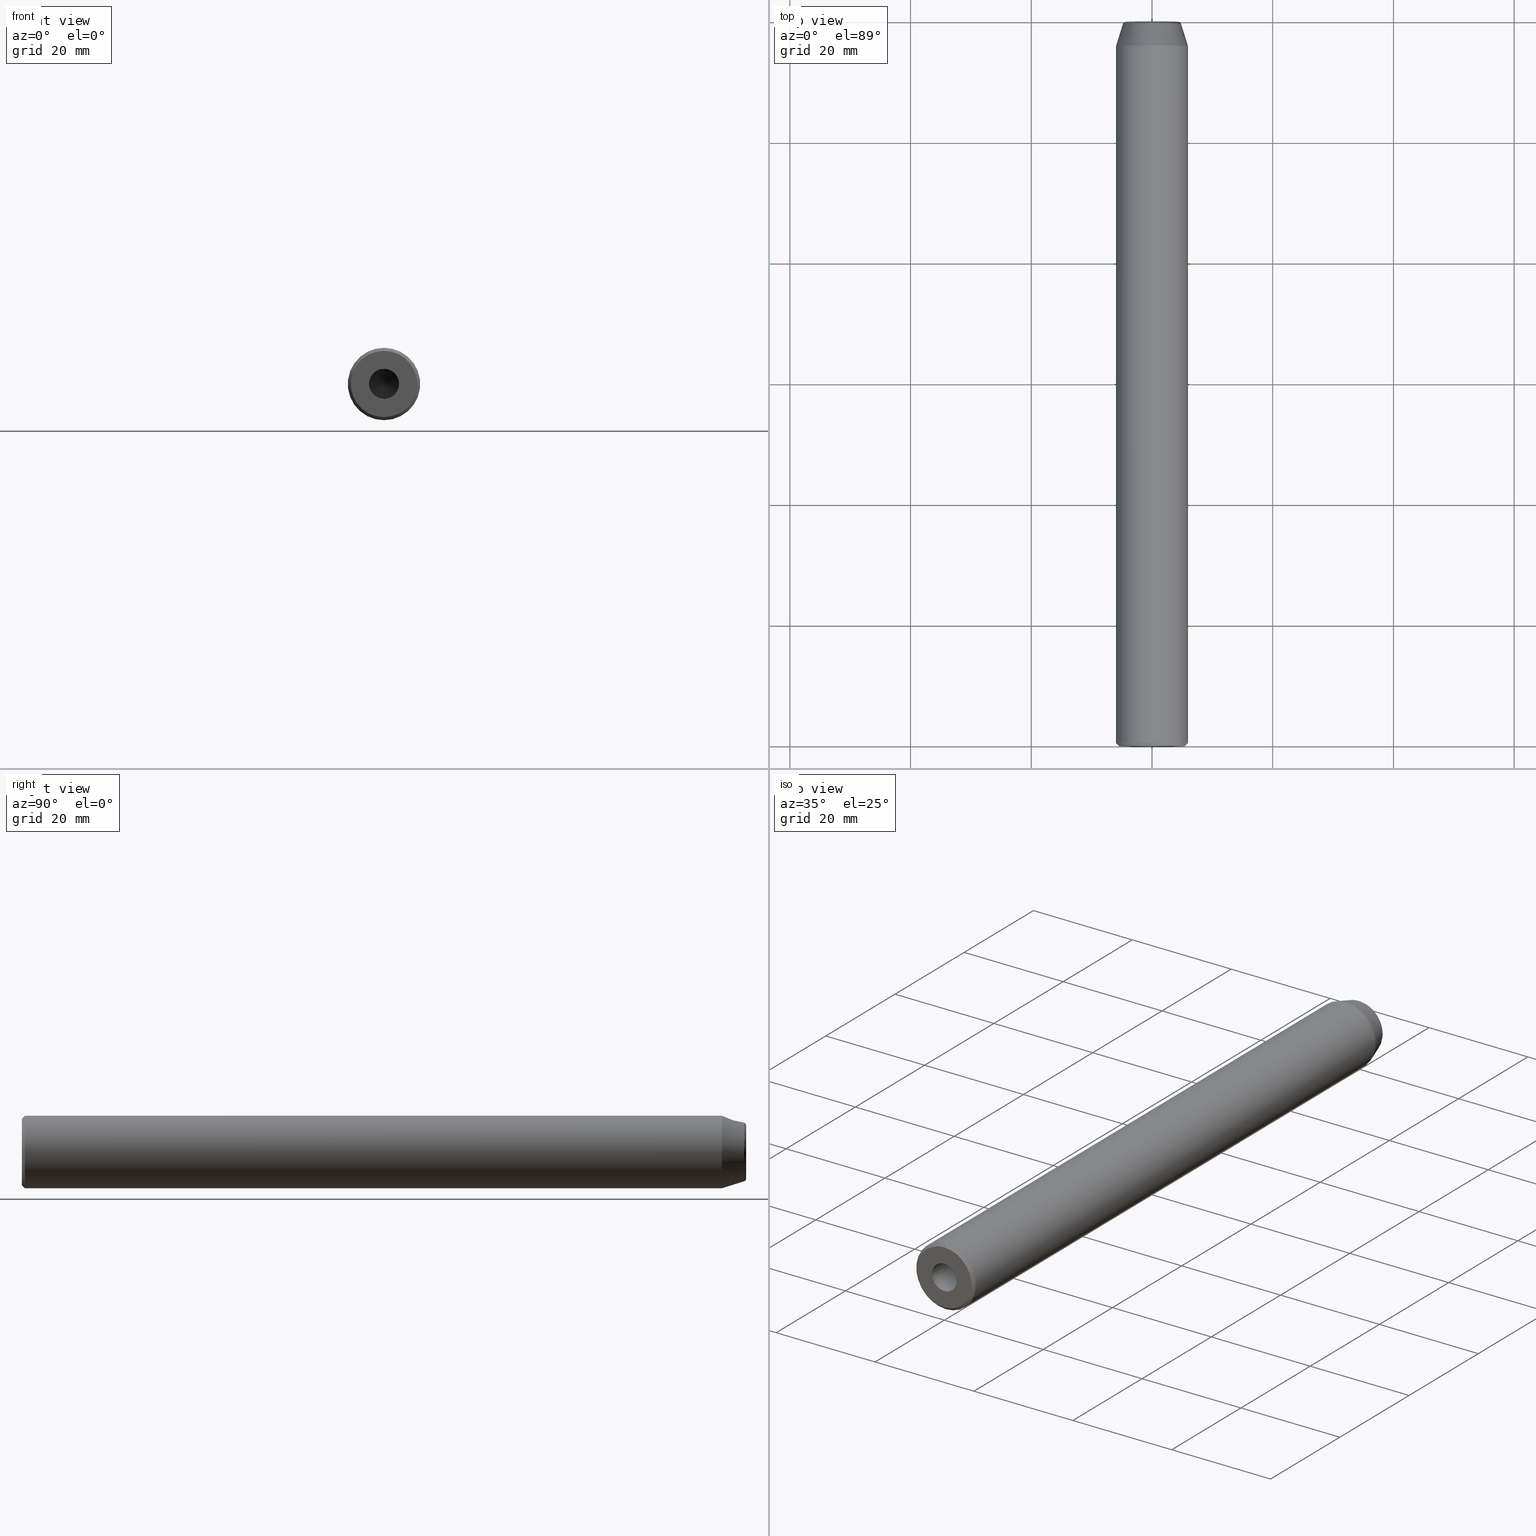
[diagram: canonical four-view strip — front | top / right | iso, engineering-drawing reading convention]
A machine part, canonical four-view strip (front | top / right | iso — engineering-drawing reading convention). The complete STEP part file that produces these views, byte-faithful:
ISO-10303-21;
HEADER;
FILE_DESCRIPTION (( 'STEP AP203' ),
    '1' );
FILE_NAME ('524212.STEP',
    '2024-06-12T02:05:01',
    ( 'Windows User' ),
    ( 'P R C' ),
    'SwSTEP 2.0',
    'SolidWorks 2020',
    '' );
FILE_SCHEMA (( 'CONFIG_CONTROL_DESIGN' ));
ENDSEC;

DATA;
#1 = ORIENTED_EDGE ( 'NONE', *, *, #247, .F. ) ;
#2 = SECURITY_CLASSIFICATION_LEVEL ( 'unclassified' ) ;
#3 = ORIENTED_EDGE ( 'NONE', *, *, #193, .F. ) ;
#4 = CARTESIAN_POINT ( 'NONE',  ( 9.583974353807441560, 119.8656410339957432, 4.791987176903720780 ) ) ;
#5 = PLANE ( 'NONE',  #108 ) ;
#6 = LOCAL_TIME ( 10, 5, 1.000000000000000000, #21 ) ;
#7 = MECHANICAL_CONTEXT ( 'NONE', #179, 'mechanical' ) ;
#8 = AXIS2_PLACEMENT_3D ( 'NONE', #116, #299, #20 ) ;
#9 = DIRECTION ( 'NONE',  ( 0.000000000000000000, 0.000000000000000000, 1.000000000000000000 ) ) ;
#10 = CIRCLE ( 'NONE', #121, 2.499999999999998224 ) ;
#11 = CARTESIAN_POINT ( 'NONE',  ( 0.000000000000000000, 0.5000000000000004441, -6.000000000000000888 ) ) ;
#12 = DIRECTION ( 'NONE',  ( 0.000000000000000000, 0.000000000000000000, -1.000000000000000000 ) ) ;
#13 = CARTESIAN_POINT ( 'NONE',  ( 0.000000000000000000, 120.0000000000000000, 1.649999999999998579 ) ) ;
#14 = CARTESIAN_POINT ( 'NONE',  ( 0.000000000000000000, 11.00000000000000000, 0.000000000000000000 ) ) ;
#15 = CARTESIAN_POINT ( 'NONE',  ( 0.000000000000000000, 109.8999999999999915, 1.649999999999998579 ) ) ;
#16 = ADVANCED_FACE ( 'NONE', ( #225, #266 ), #229, .T. ) ;
#17 = CC_DESIGN_APPROVAL ( #262, ( #45 ) ) ;
#18 = CARTESIAN_POINT ( 'NONE',  ( 5.483787781522369726E-16, 120.0000000000000000, -4.382404543304999400 ) ) ;
#19 = APPROVAL_ROLE ( '' ) ;
#20 = DIRECTION ( 'NONE',  ( 0.000000000000000000, 0.000000000000000000, 1.000000000000000000 ) ) ;
#21 = COORDINATED_UNIVERSAL_TIME_OFFSET ( 8, 0, .AHEAD. ) ;
#22 = DIRECTION ( 'NONE',  ( 0.000000000000000000, 0.000000000000000000, -1.000000000000000000 ) ) ;
#23 = APPROVAL ( #237, 'δָ��' ) ;
#24 = APPROVAL_DATE_TIME ( #126, #262 ) ;
#25 = LOCAL_TIME ( 10, 5, 1.000000000000000000, #233 ) ;
#26 = PERSON ( 'δָ��', 'δָ��', 'δָ��', ('δָ��'), ('δָ��'), ('δָ��') ) ;
#27 = CIRCLE ( 'NONE', #67, 4.859644532331230948 ) ;
#28 = CALENDAR_DATE ( 2024, 12, 6 ) ;
#29 = PERSON_AND_ORGANIZATION ( #26, #174 ) ;
#30 = CC_DESIGN_PERSON_AND_ORGANIZATION_ASSIGNMENT ( #29, #48, ( #235 ) ) ;
#31 = CARTESIAN_POINT ( 'NONE',  ( 9.218466664468715877, 119.9999999999999858, 4.609233332234357938 ) ) ;
#32 = CARTESIAN_POINT ( 'NONE',  ( 0.000000000000000000, 119.6491374965103205, -4.859644532331230948 ) ) ;
#33 = CARTESIAN_POINT ( 'NONE',  ( -8.764809086609998801, 119.9999999999999858, -4.382404543304999400 ) ) ;
#34 =( NAMED_UNIT ( * ) PLANE_ANGLE_UNIT ( ) SI_UNIT ( $, .RADIAN. ) );
#35 = CARTESIAN_POINT ( 'NONE',  ( 0.000000000000000000, 109.8999999998977728, 0.000000000000000000 ) ) ;
#36 = CARTESIAN_POINT ( 'NONE',  ( 0.000000000000000000, 11.00000000000000000, -2.499999999999998224 ) ) ;
#37 = FACE_OUTER_BOUND ( 'NONE', #188, .T. ) ;
#38 = CONICAL_SURFACE ( 'NONE', #209, 1.649999999870033207, 1.029744258665856727 ) ;
#39 = APPROVAL_STATUS ( 'not_yet_approved' ) ;
#40 = FACE_BOUND ( 'NONE', #75, .T. ) ;
#41 = EDGE_CURVE ( 'NONE', #59, #59, #258, .T. ) ;
#42 = VERTEX_POINT ( 'NONE', #13 ) ;
#43 = DIRECTION ( 'NONE',  ( 0.000000000000000000, -1.000000000000000000, 0.000000000000000000 ) ) ;
#44 = DATE_AND_TIME ( #239, #151 ) ;
#45 = SECURITY_CLASSIFICATION ( '', '', #2 ) ;
#46 = CONICAL_SURFACE ( 'NONE', #220, 5.999999999971805664, 0.3028848683740845149 ) ;
#47 = DIRECTION ( 'NONE',  ( -0.000000000000000000, -1.000000000000000000, -0.000000000000000000 ) ) ;
#48 = PERSON_AND_ORGANIZATION_ROLE ( 'creator' ) ;
#49 = DIRECTION ( 'NONE',  ( 0.000000000000000000, 0.000000000000000000, 1.000000000000000000 ) ) ;
#50 = DATE_AND_TIME ( #153, #66 ) ;
#51 = ADVANCED_FACE ( 'NONE', ( #202, #161 ), #5, .T. ) ;
#52 = PERSON_AND_ORGANIZATION_ROLE ( 'classification_officer' ) ;
#53 = CARTESIAN_POINT ( 'NONE',  ( 0.000000000000000000, 120.0000000000000000, 0.000000000000000000 ) ) ;
#54 = CARTESIAN_POINT ( 'NONE',  ( 8.764809086609998801, 119.9999999999999858, 4.382404543304999400 ) ) ;
#55 = CARTESIAN_POINT ( 'NONE',  ( 9.218466664468715877, 119.9999999999999858, -4.609233332234357938 ) ) ;
#56 = EDGE_LOOP ( 'NONE', ( #73 ) ) ;
#57 = DIRECTION ( 'NONE',  ( 0.000000000000000000, 1.000000000000000000, 0.000000000000000000 ) ) ;
#58 = CARTESIAN_POINT ( 'NONE',  ( -9.218466664468715877, 119.9999999999999858, 4.609233332234357938 ) ) ;
#59 = VERTEX_POINT ( 'NONE', #89 ) ;
#60 = CARTESIAN_POINT ( 'NONE',  ( -8.764809086609997024, 120.0000000000000142, -4.382404543305000288 ) ) ;
#61 = PRODUCT_DEFINITION ( 'δ֪', '', #235, #85 ) ;
#62 = DIRECTION ( 'NONE',  ( 0.000000000000000000, 1.000000000000000000, 0.000000000000000000 ) ) ;
#63 = DATE_AND_TIME ( #298, #25 ) ;
#64 = CARTESIAN_POINT ( 'NONE',  ( 5.483787781522369726E-16, 120.0000000000000000, -4.382404543304999400 ) ) ;
#65 = APPROVAL_STATUS ( 'not_yet_approved' ) ;
#66 = LOCAL_TIME ( 10, 5, 1.000000000000000000, #118 ) ;
#67 = AXIS2_PLACEMENT_3D ( 'NONE', #256, #293, #12 ) ;
#68 = FACE_OUTER_BOUND ( 'NONE', #180, .T. ) ;
#69 = CIRCLE ( 'NONE', #138, 1.649999999999998579 ) ;
#70 = COORDINATED_UNIVERSAL_TIME_OFFSET ( 8, 0, .AHEAD. ) ;
#71 = ADVANCED_FACE ( 'NONE', ( #249, #292 ), #117, .T. ) ;
#72 = APPROVAL ( #39, 'δָ��' ) ;
#73 = ORIENTED_EDGE ( 'NONE', *, *, #268, .F. ) ;
#74 = CIRCLE ( 'NONE', #242, 5.500000000040472514 ) ;
#75 = EDGE_LOOP ( 'NONE', ( #1 ) ) ;
#76 = ORIENTED_EDGE ( 'NONE', *, *, #120, .T. ) ;
#77 = CARTESIAN_POINT ( 'NONE',  ( 0.000000000000000000, 119.8656410339957574, -4.791987176903720780 ) ) ;
#78 = EDGE_CURVE ( 'NONE', #125, #205, #263, .T. ) ;
#79 = CYLINDRICAL_SURFACE ( 'NONE', #288, 6.000000000000000888 ) ;
#80 = CARTESIAN_POINT ( 'NONE',  ( -8.764809086609998801, 119.9999999999999858, 4.382404543304999400 ) ) ;
#81 = PERSON_AND_ORGANIZATION ( #26, #174 ) ;
#82 = DIRECTION ( 'NONE',  ( -0.000000000000000000, -1.000000000000000000, -0.000000000000000000 ) ) ;
#83 = CC_DESIGN_PERSON_AND_ORGANIZATION_ASSIGNMENT ( #296, #87, ( #61 ) ) ;
#84 = CARTESIAN_POINT ( 'NONE',  ( 0.000000000000000000, 0.000000000000000000, 5.500000000040472514 ) ) ;
#85 = DESIGN_CONTEXT ( 'detailed design', #146, 'design' ) ;
#86 = CARTESIAN_POINT ( 'NONE',  ( 0.000000000000000000, 120.0000000000000000, 4.382404543304999400 ) ) ;
#87 = PERSON_AND_ORGANIZATION_ROLE ( 'creator' ) ;
#88 = CARTESIAN_POINT ( 'NONE',  ( 8.764809086609997024, 120.0000000000000142, 4.382404543304999400 ) ) ;
#89 = CARTESIAN_POINT ( 'NONE',  ( 0.000000000000000000, 115.9999999999999858, -6.000000000000000888 ) ) ;
#90 = CYLINDRICAL_SURFACE ( 'NONE', #96, 2.499999999999998224 ) ;
#91 = DIRECTION ( 'NONE',  ( 0.000000000000000000, 0.000000000000000000, -1.000000000000000000 ) ) ;
#92 = AXIS2_PLACEMENT_3D ( 'NONE', #182, #221, #223 ) ;
#93 = AXIS2_PLACEMENT_3D ( 'NONE', #276, #62, #280 ) ;
#94 = DATE_AND_TIME ( #28, #6 ) ;
#95 = EDGE_LOOP ( 'NONE', ( #287, #241 ) ) ;
#96 = AXIS2_PLACEMENT_3D ( 'NONE', #278, #295, #297 ) ;
#97 = ORIENTED_EDGE ( 'NONE', *, *, #193, .T. ) ;
#98 = EDGE_LOOP ( 'NONE', ( #97 ) ) ;
#99 = EDGE_LOOP ( 'NONE', ( #130 ) ) ;
#100 = DATE_TIME_ROLE ( 'classification_date' ) ;
#101 = CARTESIAN_POINT ( 'NONE',  ( 0.000000000000000000, 120.0000000000000000, -4.382404543304999400 ) ) ;
#102 = EDGE_LOOP ( 'NONE', ( #3 ) ) ;
#103 = ADVANCED_FACE ( 'NONE', ( #37, #196 ), #90, .F. ) ;
#104 = DIRECTION ( 'NONE',  ( 0.000000000000000000, 1.000000000000000000, 0.000000000000000000 ) ) ;
#105 =( NAMED_UNIT ( * ) SI_UNIT ( $, .STERADIAN. ) SOLID_ANGLE_UNIT ( ) );
#106 = ORIENTED_EDGE ( 'NONE', *, *, #131, .F. ) ;
#107 = CC_DESIGN_APPROVAL ( #23, ( #235 ) ) ;
#108 = AXIS2_PLACEMENT_3D ( 'NONE', #53, #104, #154 ) ;
#109 = AXIS2_PLACEMENT_3D ( 'NONE', #248, #160, #211 ) ;
#110 = CARTESIAN_POINT ( 'NONE',  ( 0.000000000000000000, 1.040949779275260987E-16, 0.000000000000000000 ) ) ;
#111 = DIRECTION ( 'NONE',  ( 0.000000000000000000, 0.000000000000000000, -1.000000000000000000 ) ) ;
#112 = PLANE ( 'NONE',  #208 ) ;
#113 = APPROVAL_DATE_TIME ( #63, #72 ) ;
#114 = CARTESIAN_POINT ( 'NONE',  ( 9.719289064679410117, 119.6491374965129637, -4.859644532339705059 ) ) ;
#115 = CARTESIAN_POINT ( 'NONE',  ( 0.000000000000000000, 25.00000000000000000, 0.000000000000000000 ) ) ;
#116 = CARTESIAN_POINT ( 'NONE',  ( 0.000000000000000000, 120.0000000000000000, 0.000000000000000000 ) ) ;
#117 =( BOUNDED_SURFACE ( )  B_SPLINE_SURFACE ( 3, 3, ( 
 ( #206, #54, #267, #101, #33, #80, #204 ),
 ( #156, #31, #55, #157, #246, #58, #127 ),
 ( #132, #4, #291, #77, #252, #170, #195 ),
 ( #140, #250, #114, #190, #212, #257, #214 ) ),
 .UNSPECIFIED., .F., .T., .T. ) 
 B_SPLINE_SURFACE_WITH_KNOTS ( ( 4, 4 ),
 ( 4, 3, 4 ),
 ( 0.000000000000000000, 1.000000000000000000 ),
 ( 0.000000000000000000, 0.5000000000000000000, 1.000000000000000000 ),
 .UNSPECIFIED. ) 
 GEOMETRIC_REPRESENTATION_ITEM ( )  RATIONAL_B_SPLINE_SURFACE ( (
 ( 1.000000000000000000, 0.3333333333333333148, 0.3333333333333333148, 1.000000000000000000, 0.3333333333333333148, 0.3333333333333333148, 1.000000000000000000),
 ( 0.8704604635415936764, 0.2901534878471978551, 0.2901534878471978551, 0.8704604635415936764, 0.2901534878471978551, 0.2901534878471978551, 0.8704604635415936764),
 ( 0.8704604635415936764, 0.2901534878471978551, 0.2901534878471978551, 0.8704604635415936764, 0.2901534878471978551, 0.2901534878471978551, 0.8704604635415936764),
 ( 1.000000000000000000, 0.3333333333333333148, 0.3333333333333333148, 1.000000000000000000, 0.3333333333333333148, 0.3333333333333333148, 1.000000000000000000) ) ) 
 REPRESENTATION_ITEM ( '' )  SURFACE ( )  );
#118 = COORDINATED_UNIVERSAL_TIME_OFFSET ( 8, 0, .AHEAD. ) ;
#119 = DIRECTION ( 'NONE',  ( 0.000000000000000000, 0.000000000000000000, -1.000000000000000000 ) ) ;
#120 = EDGE_CURVE ( 'NONE', #273, #273, #198, .T. ) ;
#121 = AXIS2_PLACEMENT_3D ( 'NONE', #110, #82, #22 ) ;
#122 = CC_DESIGN_PERSON_AND_ORGANIZATION_ASSIGNMENT ( #149, #282, ( #235 ) ) ;
#123 = EDGE_LOOP ( 'NONE', ( #270 ) ) ;
#124 = CLOSED_SHELL ( 'NONE', ( #289, #103, #201, #16, #279, #240, #226, #51, #71, #178 ) ) ;
#125 = VERTEX_POINT ( 'NONE', #167 ) ;
#126 = DATE_AND_TIME ( #222, #142 ) ;
#127 = CARTESIAN_POINT ( 'NONE',  ( 0.000000000000000000, 120.0000000000000000, 4.609233332234357938 ) ) ;
#128 = PERSON_AND_ORGANIZATION ( #26, #174 ) ;
#129 = DIRECTION ( 'NONE',  ( 0.000000000000000000, 0.000000000000000000, 1.000000000000000000 ) ) ;
#130 = ORIENTED_EDGE ( 'NONE', *, *, #41, .F. ) ;
#131 = EDGE_CURVE ( 'NONE', #205, #125, #164, .T. ) ;
#132 = CARTESIAN_POINT ( 'NONE',  ( 0.000000000000000000, 119.8656410339957574, 4.791987176903720780 ) ) ;
#133 = VERTEX_POINT ( 'NONE', #84 ) ;
#134 = DIRECTION ( 'NONE',  ( 0.000000000000000000, 1.000000000000000000, 0.000000000000000000 ) ) ;
#135 = DIRECTION ( 'NONE',  ( -0.000000000000000000, 1.000000000000000000, 0.000000000000000000 ) ) ;
#136 = VERTEX_POINT ( 'NONE', #15 ) ;
#137 = UNCERTAINTY_MEASURE_WITH_UNIT (LENGTH_MEASURE( 1.000000000000000082E-05 ), #194, 'distance_accuracy_value', 'NONE');
#138 = AXIS2_PLACEMENT_3D ( 'NONE', #173, #259, #49 ) ;
#139 = CARTESIAN_POINT ( 'NONE',  ( 0.000000000000000000, 120.0000000000000000, 4.382404543304999400 ) ) ;
#140 = CARTESIAN_POINT ( 'NONE',  ( 0.000000000000000000, 119.6491374965129637, 4.859644532339705059 ) ) ;
#141 = FACE_OUTER_BOUND ( 'NONE', #264, .T. ) ;
#142 = LOCAL_TIME ( 10, 5, 1.000000000000000000, #70 ) ;
#143 = AXIS2_PLACEMENT_3D ( 'NONE', #14, #47, #91 ) ;
#144 = EDGE_CURVE ( 'NONE', #162, #162, #27, .T. ) ;
#145 = CARTESIAN_POINT ( 'NONE',  ( 0.000000000000000000, 0.000000000000000000, 0.000000000000000000 ) ) ;
#146 = APPLICATION_CONTEXT ( 'configuration controlled 3d designs of mechanical parts and assemblies' ) ;
#147 = PRODUCT ( '524212', '524212', '', ( #7 ) ) ;
#148 = FACE_OUTER_BOUND ( 'NONE', #98, .T. ) ;
#149 = PERSON_AND_ORGANIZATION ( #26, #174 ) ;
#150 = ORIENTED_EDGE ( 'NONE', *, *, #300, .T. ) ;
#151 = LOCAL_TIME ( 10, 5, 1.000000000000000000, #260 ) ;
#152 = AXIS2_PLACEMENT_3D ( 'NONE', #216, #169, #163 ) ;
#153 = CALENDAR_DATE ( 2024, 12, 6 ) ;
#154 = DIRECTION ( 'NONE',  ( 0.000000000000000000, -0.000000000000000000, 1.000000000000000000 ) ) ;
#155 = ADVANCED_BREP_SHAPE_REPRESENTATION ( '524212', ( #306, #230 ), #199 ) ;
#156 = CARTESIAN_POINT ( 'NONE',  ( 0.000000000000000000, 120.0000000000000000, 4.609233332234357938 ) ) ;
#157 = CARTESIAN_POINT ( 'NONE',  ( 0.000000000000000000, 120.0000000000000000, -4.609233332234357938 ) ) ;
#158 = FACE_OUTER_BOUND ( 'NONE', #309, .T. ) ;
#159 = EDGE_LOOP ( 'NONE', ( #150 ) ) ;
#160 = DIRECTION ( 'NONE',  ( 0.000000000000000000, -1.000000000000000000, 0.000000000000000000 ) ) ;
#161 = FACE_OUTER_BOUND ( 'NONE', #265, .T. ) ;
#162 = VERTEX_POINT ( 'NONE', #32 ) ;
#163 = DIRECTION ( 'NONE',  ( 0.000000000000000000, 0.000000000000000000, -1.000000000000000000 ) ) ;
#164 =( BOUNDED_CURVE ( )  B_SPLINE_CURVE ( 3, ( #139, #231, #60, #64 ),
 .UNSPECIFIED., .F., .T. ) 
 B_SPLINE_CURVE_WITH_KNOTS ( ( 4, 4 ),
 ( 0.000000000000000000, 1.000000000000000000 ),
 .UNSPECIFIED. ) 
 CURVE ( )  GEOMETRIC_REPRESENTATION_ITEM ( )  RATIONAL_B_SPLINE_CURVE ( ( 1.000000000000000000, 0.3333333333333333703, 0.3333333333333333703, 1.000000000000000000 ) ) 
 REPRESENTATION_ITEM ( '' )  );
#165 = APPLICATION_PROTOCOL_DEFINITION ( 'international standard', 'config_control_design', 1994, #146 ) ;
#166 = APPROVAL_PERSON_ORGANIZATION ( #253, #72, #232 ) ;
#167 = CARTESIAN_POINT ( 'NONE',  ( 5.483787781522369726E-16, 120.0000000000000000, -4.382404543304999400 ) ) ;
#168 = DIRECTION ( 'NONE',  ( 0.000000000000000000, 0.000000000000000000, 1.000000000000000000 ) ) ;
#169 = DIRECTION ( 'NONE',  ( 0.000000000000000000, 1.000000000000000000, 0.000000000000000000 ) ) ;
#170 = CARTESIAN_POINT ( 'NONE',  ( -9.583974353807441560, 119.8656410339957432, 4.791987176903720780 ) ) ;
#171 = CIRCLE ( 'NONE', #152, 6.000000000000000888 ) ;
#172 = SHAPE_DEFINITION_REPRESENTATION ( #301, #155 ) ;
#173 = CARTESIAN_POINT ( 'NONE',  ( 0.000000000000000000, 109.8999999999999915, 0.000000000000000000 ) ) ;
#174 = ORGANIZATION ( 'δָ��', 'δָ��', '' ) ;
#175 = APPROVAL_ROLE ( '' ) ;
#176 = CC_DESIGN_PERSON_AND_ORGANIZATION_ASSIGNMENT ( #81, #189, ( #147 ) ) ;
#177 = ORIENTED_EDGE ( 'NONE', *, *, #218, .T. ) ;
#178 = ADVANCED_FACE ( 'NONE', ( #254, #277 ), #46, .T. ) ;
#179 = APPLICATION_CONTEXT ( 'configuration controlled 3d designs of mechanical parts and assemblies' ) ;
#180 = EDGE_LOOP ( 'NONE', ( #227 ) ) ;
#181 = CC_DESIGN_DATE_AND_TIME_ASSIGNMENT ( #44, #303, ( #61 ) ) ;
#182 = CARTESIAN_POINT ( 'NONE',  ( 0.000000000000000000, 115.9999999999999858, 0.000000000000000000 ) ) ;
#183 = EDGE_LOOP ( 'NONE', ( #177 ) ) ;
#184 = ORIENTED_EDGE ( 'NONE', *, *, #218, .F. ) ;
#185 = CC_DESIGN_APPROVAL ( #72, ( #61 ) ) ;
#186 = AXIS2_PLACEMENT_3D ( 'NONE', #244, #134, #129 ) ;
#187 = DIRECTION ( 'NONE',  ( -0.000000000000000000, -1.000000000000000000, -0.000000000000000000 ) ) ;
#188 = EDGE_LOOP ( 'NONE', ( #290 ) ) ;
#189 = PERSON_AND_ORGANIZATION_ROLE ( 'design_owner' ) ;
#190 = CARTESIAN_POINT ( 'NONE',  ( 0.000000000000000000, 119.6491374965129637, -4.859644532339705059 ) ) ;
#191 = FACE_OUTER_BOUND ( 'NONE', #272, .T. ) ;
#192 = CARTESIAN_POINT ( 'NONE',  ( 0.000000000000000000, 120.0000000000000000, 4.382404543304999400 ) ) ;
#193 = EDGE_CURVE ( 'NONE', #275, #275, #171, .T. ) ;
#194 =( LENGTH_UNIT ( ) NAMED_UNIT ( * ) SI_UNIT ( .MILLI., .METRE. ) );
#195 = CARTESIAN_POINT ( 'NONE',  ( 0.000000000000000000, 119.8656410339957574, 4.791987176903720780 ) ) ;
#196 = FACE_OUTER_BOUND ( 'NONE', #245, .T. ) ;
#197 = APPROVAL_PERSON_ORGANIZATION ( #284, #262, #19 ) ;
#198 = CIRCLE ( 'NONE', #143, 2.499999999999998224 ) ;
#199 =( GEOMETRIC_REPRESENTATION_CONTEXT ( 3 ) GLOBAL_UNCERTAINTY_ASSIGNED_CONTEXT ( ( #137 ) ) GLOBAL_UNIT_ASSIGNED_CONTEXT ( ( #194, #34, #105 ) ) REPRESENTATION_CONTEXT ( 'NONE', 'WORKASPACE' ) );
#200 = ORIENTED_EDGE ( 'NONE', *, *, #41, .T. ) ;
#201 = ADVANCED_FACE ( 'NONE', ( #40, #141 ), #112, .F. ) ;
#202 = FACE_BOUND ( 'NONE', #183, .T. ) ;
#203 = CC_DESIGN_DATE_AND_TIME_ASSIGNMENT ( #94, #100, ( #45 ) ) ;
#204 = CARTESIAN_POINT ( 'NONE',  ( 0.000000000000000000, 120.0000000000000000, 4.382404543304999400 ) ) ;
#205 = VERTEX_POINT ( 'NONE', #86 ) ;
#206 = CARTESIAN_POINT ( 'NONE',  ( 0.000000000000000000, 120.0000000000000000, 4.382404543304999400 ) ) ;
#207 = EDGE_LOOP ( 'NONE', ( #305 ) ) ;
#208 = AXIS2_PLACEMENT_3D ( 'NONE', #145, #236, #234 ) ;
#209 = AXIS2_PLACEMENT_3D ( 'NONE', #35, #135, #9 ) ;
#210 = CARTESIAN_POINT ( 'NONE',  ( 0.000000000000000000, 116.0000000000718501, 0.000000000000000000 ) ) ;
#211 = DIRECTION ( 'NONE',  ( 0.000000000000000000, 0.000000000000000000, -1.000000000000000000 ) ) ;
#212 = CARTESIAN_POINT ( 'NONE',  ( -9.719289064679410117, 119.6491374965129637, -4.859644532339705059 ) ) ;
#213 = CARTESIAN_POINT ( 'NONE',  ( 0.000000000000000000, 0.000000000000000000, 0.000000000000000000 ) ) ;
#214 = CARTESIAN_POINT ( 'NONE',  ( 0.000000000000000000, 119.6491374965129637, 4.859644532339705059 ) ) ;
#215 = CARTESIAN_POINT ( 'NONE',  ( 0.000000000000000000, 0.000000000000000000, 0.000000000000000000 ) ) ;
#216 = CARTESIAN_POINT ( 'NONE',  ( 0.000000000000000000, 0.5000000000000004441, 0.000000000000000000 ) ) ;
#217 = FACE_OUTER_BOUND ( 'NONE', #56, .T. ) ;
#218 = EDGE_CURVE ( 'NONE', #42, #42, #281, .T. ) ;
#219 = ORIENTED_EDGE ( 'NONE', *, *, #300, .F. ) ;
#220 = AXIS2_PLACEMENT_3D ( 'NONE', #210, #43, #119 ) ;
#221 = DIRECTION ( 'NONE',  ( -0.000000000000000000, -1.000000000000000000, -0.000000000000000000 ) ) ;
#222 = CALENDAR_DATE ( 2024, 12, 6 ) ;
#223 = DIRECTION ( 'NONE',  ( 0.000000000000000000, 0.000000000000000000, -1.000000000000000000 ) ) ;
#224 = EDGE_LOOP ( 'NONE', ( #200 ) ) ;
#225 = FACE_OUTER_BOUND ( 'NONE', #102, .T. ) ;
#226 = ADVANCED_FACE ( 'NONE', ( #191, #217 ), #302, .F. ) ;
#227 = ORIENTED_EDGE ( 'NONE', *, *, #268, .T. ) ;
#228 = APPLICATION_PROTOCOL_DEFINITION ( 'international standard', 'config_control_design', 1994, #179 ) ;
#229 = CONICAL_SURFACE ( 'NONE', #186, 6.000000000085492502, 0.7853981633406048601 ) ;
#230 = AXIS2_PLACEMENT_3D ( 'NONE', #213, #168, #251 ) ;
#231 = CARTESIAN_POINT ( 'NONE',  ( -8.764809086609997024, 120.0000000000000142, 4.382404543304999400 ) ) ;
#232 = APPROVAL_ROLE ( '' ) ;
#233 = COORDINATED_UNIVERSAL_TIME_OFFSET ( 8, 0, .AHEAD. ) ;
#234 = DIRECTION ( 'NONE',  ( 0.000000000000000000, -0.000000000000000000, 1.000000000000000000 ) ) ;
#235 = PRODUCT_DEFINITION_FORMATION_WITH_SPECIFIED_SOURCE ( '�κ�', '', #147, .NOT_KNOWN. ) ;
#236 = DIRECTION ( 'NONE',  ( 0.000000000000000000, 1.000000000000000000, 0.000000000000000000 ) ) ;
#237 = APPROVAL_STATUS ( 'not_yet_approved' ) ;
#238 = FACE_OUTER_BOUND ( 'NONE', #224, .T. ) ;
#239 = CALENDAR_DATE ( 2024, 12, 6 ) ;
#240 = ADVANCED_FACE ( 'NONE', ( #68 ), #38, .F. ) ;
#241 = ORIENTED_EDGE ( 'NONE', *, *, #78, .T. ) ;
#242 = AXIS2_PLACEMENT_3D ( 'NONE', #215, #57, #255 ) ;
#243 = APPROVAL_DATE_TIME ( #50, #23 ) ;
#244 = CARTESIAN_POINT ( 'NONE',  ( 0.000000000000000000, 0.5000000001018634066, 0.000000000000000000 ) ) ;
#245 = EDGE_LOOP ( 'NONE', ( #307 ) ) ;
#246 = CARTESIAN_POINT ( 'NONE',  ( -9.218466664468715877, 119.9999999999999858, -4.609233332234357938 ) ) ;
#247 = EDGE_CURVE ( 'NONE', #294, #294, #10, .T. ) ;
#248 = CARTESIAN_POINT ( 'NONE',  ( 0.000000000000000000, 11.00000000002410161, 0.000000000000000000 ) ) ;
#249 = FACE_OUTER_BOUND ( 'NONE', #95, .T. ) ;
#250 = CARTESIAN_POINT ( 'NONE',  ( 9.719289064679410117, 119.6491374965129637, 4.859644532339705059 ) ) ;
#251 = DIRECTION ( 'NONE',  ( 1.000000000000000000, 0.000000000000000000, 0.000000000000000000 ) ) ;
#252 = CARTESIAN_POINT ( 'NONE',  ( -9.583974353807441560, 119.8656410339957432, -4.791987176903720780 ) ) ;
#253 = PERSON_AND_ORGANIZATION ( #26, #174 ) ;
#254 = FACE_OUTER_BOUND ( 'NONE', #99, .T. ) ;
#255 = DIRECTION ( 'NONE',  ( 0.000000000000000000, 0.000000000000000000, 1.000000000000000000 ) ) ;
#256 = CARTESIAN_POINT ( 'NONE',  ( 0.000000000000000000, 119.6491374965103205, 0.000000000000000000 ) ) ;
#257 = CARTESIAN_POINT ( 'NONE',  ( -9.719289064679410117, 119.6491374965129637, 4.859644532339705059 ) ) ;
#258 = CIRCLE ( 'NONE', #92, 6.000000000000000888 ) ;
#259 = DIRECTION ( 'NONE',  ( 0.000000000000000000, 1.000000000000000000, 0.000000000000000000 ) ) ;
#260 = COORDINATED_UNIVERSAL_TIME_OFFSET ( 8, 0, .AHEAD. ) ;
#261 = PERSON_AND_ORGANIZATION ( #26, #174 ) ;
#262 = APPROVAL ( #65, 'δָ��' ) ;
#263 =( BOUNDED_CURVE ( )  B_SPLINE_CURVE ( 3, ( #18, #274, #88, #192 ),
 .UNSPECIFIED., .F., .T. ) 
 B_SPLINE_CURVE_WITH_KNOTS ( ( 4, 4 ),
 ( 0.000000000000000000, 1.000000000000000000 ),
 .UNSPECIFIED. ) 
 CURVE ( )  GEOMETRIC_REPRESENTATION_ITEM ( )  RATIONAL_B_SPLINE_CURVE ( ( 1.000000000000000000, 0.3333333333333333703, 0.3333333333333333703, 1.000000000000000000 ) ) 
 REPRESENTATION_ITEM ( '' )  );
#264 = EDGE_LOOP ( 'NONE', ( #219 ) ) ;
#265 = EDGE_LOOP ( 'NONE', ( #286, #106 ) ) ;
#266 = FACE_BOUND ( 'NONE', #159, .T. ) ;
#267 = CARTESIAN_POINT ( 'NONE',  ( 8.764809086609998801, 119.9999999999999858, -4.382404543304999400 ) ) ;
#268 = EDGE_CURVE ( 'NONE', #136, #136, #69, .T. ) ;
#269 = APPROVAL_PERSON_ORGANIZATION ( #261, #23, #175 ) ;
#270 = ORIENTED_EDGE ( 'NONE', *, *, #144, .F. ) ;
#271 = CARTESIAN_POINT ( 'NONE',  ( 0.000000000000000000, 1.040949779275260987E-16, -2.499999999999998224 ) ) ;
#272 = EDGE_LOOP ( 'NONE', ( #184 ) ) ;
#273 = VERTEX_POINT ( 'NONE', #36 ) ;
#274 = CARTESIAN_POINT ( 'NONE',  ( 8.764809086609997024, 120.0000000000000142, -4.382404543304998512 ) ) ;
#275 = VERTEX_POINT ( 'NONE', #11 ) ;
#276 = CARTESIAN_POINT ( 'NONE',  ( 0.000000000000000000, 120.0000000000000000, 0.000000000000000000 ) ) ;
#277 = FACE_BOUND ( 'NONE', #207, .T. ) ;
#278 = CARTESIAN_POINT ( 'NONE',  ( 0.000000000000000000, 0.000000000000000000, 0.000000000000000000 ) ) ;
#279 = ADVANCED_FACE ( 'NONE', ( #148, #238 ), #79, .T. ) ;
#280 = DIRECTION ( 'NONE',  ( 0.000000000000000000, 0.000000000000000000, 1.000000000000000000 ) ) ;
#281 = CIRCLE ( 'NONE', #8, 1.649999999999998579 ) ;
#282 = PERSON_AND_ORGANIZATION_ROLE ( 'design_supplier' ) ;
#283 = CONICAL_SURFACE ( 'NONE', #109, 2.499999999997726263, 1.029744258685237446 ) ;
#284 = PERSON_AND_ORGANIZATION ( #26, #174 ) ;
#285 = PRODUCT_RELATED_PRODUCT_CATEGORY ( 'detail', '', ( #147 ) ) ;
#286 = ORIENTED_EDGE ( 'NONE', *, *, #78, .F. ) ;
#287 = ORIENTED_EDGE ( 'NONE', *, *, #131, .T. ) ;
#288 = AXIS2_PLACEMENT_3D ( 'NONE', #115, #187, #111 ) ;
#289 = ADVANCED_FACE ( 'NONE', ( #158 ), #283, .F. ) ;
#290 = ORIENTED_EDGE ( 'NONE', *, *, #120, .F. ) ;
#291 = CARTESIAN_POINT ( 'NONE',  ( 9.583974353807441560, 119.8656410339957432, -4.791987176903720780 ) ) ;
#292 = FACE_OUTER_BOUND ( 'NONE', #123, .T. ) ;
#293 = DIRECTION ( 'NONE',  ( 0.000000000000000000, -1.000000000000000000, 0.000000000000000000 ) ) ;
#294 = VERTEX_POINT ( 'NONE', #271 ) ;
#295 = DIRECTION ( 'NONE',  ( -0.000000000000000000, -1.000000000000000000, -0.000000000000000000 ) ) ;
#296 = PERSON_AND_ORGANIZATION ( #26, #174 ) ;
#297 = DIRECTION ( 'NONE',  ( 0.000000000000000000, 0.000000000000000000, -1.000000000000000000 ) ) ;
#298 = CALENDAR_DATE ( 2024, 12, 6 ) ;
#299 = DIRECTION ( 'NONE',  ( -0.000000000000000000, -1.000000000000000000, -0.000000000000000000 ) ) ;
#300 = EDGE_CURVE ( 'NONE', #133, #133, #74, .T. ) ;
#301 = PRODUCT_DEFINITION_SHAPE ( 'NONE', 'NONE',  #61 ) ;
#302 = CYLINDRICAL_SURFACE ( 'NONE', #93, 1.649999999999998579 ) ;
#303 = DATE_TIME_ROLE ( 'creation_date' ) ;
#304 = CC_DESIGN_PERSON_AND_ORGANIZATION_ASSIGNMENT ( #128, #52, ( #45 ) ) ;
#305 = ORIENTED_EDGE ( 'NONE', *, *, #144, .T. ) ;
#306 = MANIFOLD_SOLID_BREP ( '���1', #124 ) ;
#307 = ORIENTED_EDGE ( 'NONE', *, *, #247, .T. ) ;
#308 = CC_DESIGN_SECURITY_CLASSIFICATION ( #45, ( #235 ) ) ;
#309 = EDGE_LOOP ( 'NONE', ( #76 ) ) ;
ENDSEC;
END-ISO-10303-21;
